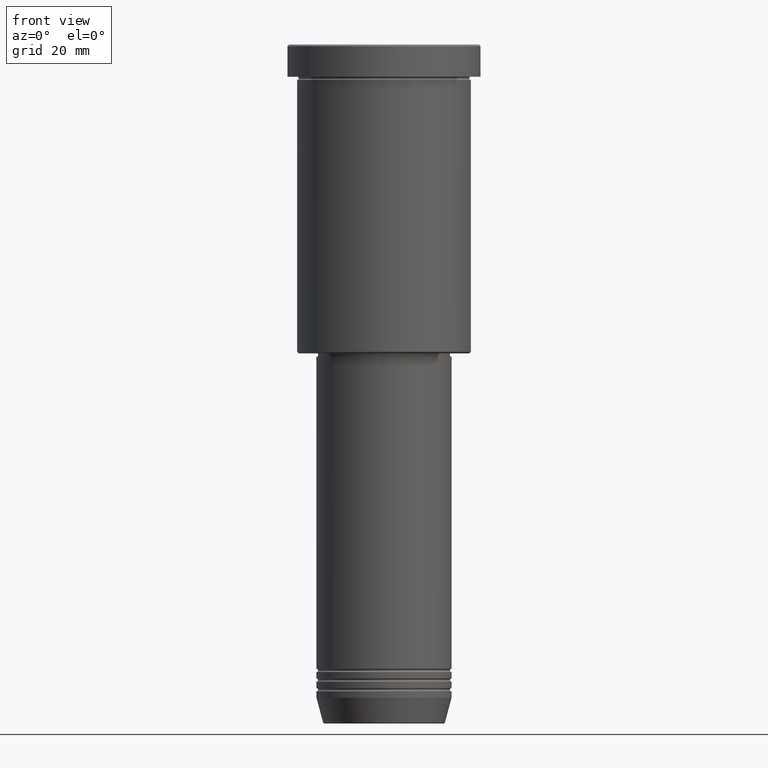
[diagram: clean part render]
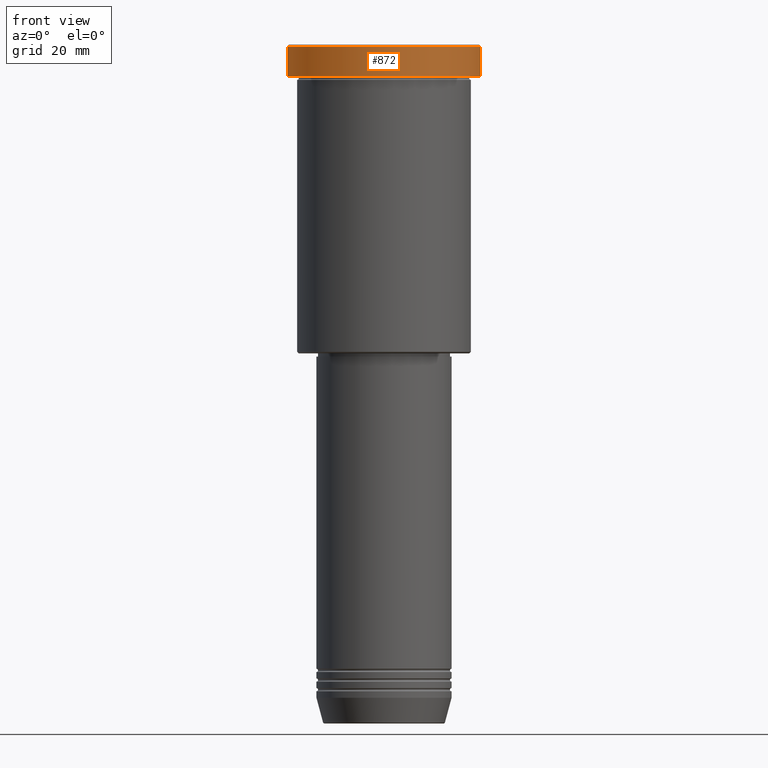
[diagram: same view with one face highlighted and labeled with its STEP entity id]
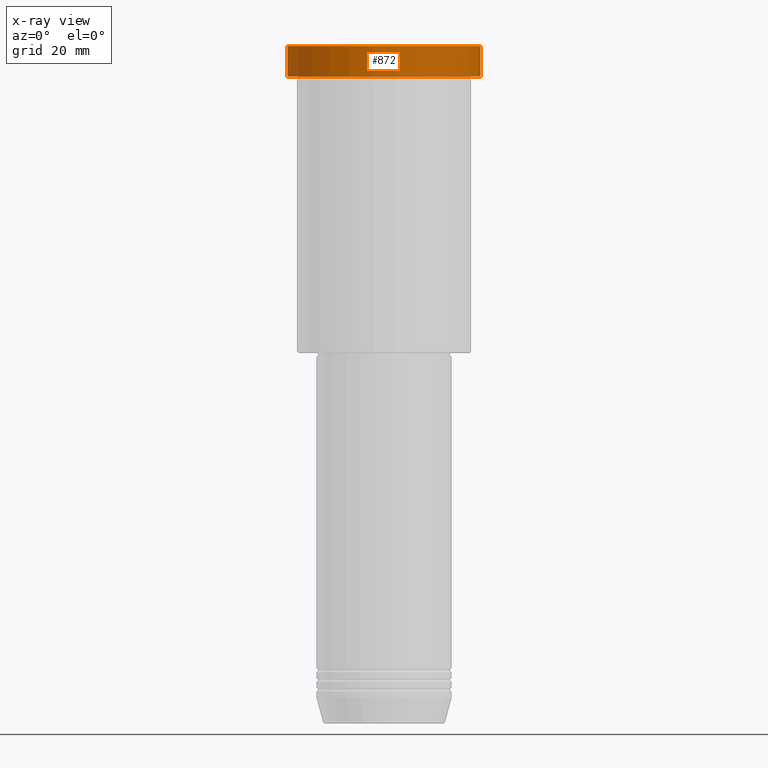
[diagram: x-ray of the same camera — body ghosted, the highlighted face saturated]
A machine part, front view. The second image highlights one B-rep face of the part: STEP entity #872.
The next image is the same camera in x-ray: the body ghosted, the highlighted face saturated — about 0% of this face is hidden behind the body in this view.
In plain terms, the highlighted cylindrical surface (partial cylindrical patch) has radius 30 mm, axis along (-0, -0, 1).
Its self-contained STEP definition (entity closure, byte-faithful):
#26 = VERTEX_POINT ( 'NONE', #225 ) ;
#44 = EDGE_CURVE ( 'NONE', #220, #1181, #228, .T. ) ;
#56 = CARTESIAN_POINT ( 'NONE',  ( 0.000000000000000000, 0.000000000000000000, 0.000000000000000000 ) ) ;
#104 = VECTOR ( 'NONE', #1065, 1000.000000000000000 ) ;
#128 = CARTESIAN_POINT ( 'NONE',  ( 30.00000000000000000, 0.000000000000000000, -9.999999999999992895 ) ) ;
#144 = EDGE_CURVE ( 'NONE', #26, #494, #806, .T. ) ;
#219 = DIRECTION ( 'NONE',  ( -0.000000000000000000, -0.000000000000000000, 1.000000000000000000 ) ) ;
#220 = VERTEX_POINT ( 'NONE', #128 ) ;
#225 = CARTESIAN_POINT ( 'NONE',  ( -30.00000000000000000, 3.673940397442059178E-15, -9.999999999999992895 ) ) ;
#228 = LINE ( 'NONE', #600, #856 ) ;
#254 = CARTESIAN_POINT ( 'NONE',  ( 0.000000000000000000, 0.000000000000000000, -0.4999999999999518718 ) ) ;
#265 = DIRECTION ( 'NONE',  ( -0.000000000000000000, -0.000000000000000000, 1.000000000000000000 ) ) ;
#277 = CARTESIAN_POINT ( 'NONE',  ( 0.000000000000000000, 0.000000000000000000, -9.999999999999992895 ) ) ;
#303 = CARTESIAN_POINT ( 'NONE',  ( 30.00000000000000000, 0.000000000000000000, -0.4999999999999518718 ) ) ;
#356 = DIRECTION ( 'NONE',  ( 0.000000000000000000, 0.000000000000000000, -1.000000000000000000 ) ) ;
#414 = AXIS2_PLACEMENT_3D ( 'NONE', #254, #356, #621 ) ;
#494 = VERTEX_POINT ( 'NONE', #1177 ) ;
#505 = DIRECTION ( 'NONE',  ( 1.000000000000000000, 0.000000000000000000, 0.000000000000000000 ) ) ;
#507 = DIRECTION ( 'NONE',  ( -0.000000000000000000, -0.000000000000000000, 1.000000000000000000 ) ) ;
#525 = CYLINDRICAL_SURFACE ( 'NONE', #822, 30.00000000000000000 ) ;
#528 = EDGE_CURVE ( 'NONE', #26, #220, #945, .T. ) ;
#530 = CIRCLE ( 'NONE', #414, 30.00000000000000000 ) ;
#594 = ORIENTED_EDGE ( 'NONE', *, *, #144, .F. ) ;
#600 = CARTESIAN_POINT ( 'NONE',  ( 30.00000000000000000, 0.000000000000000000, 0.000000000000000000 ) ) ;
#621 = DIRECTION ( 'NONE',  ( 1.000000000000000000, 0.000000000000000000, 0.000000000000000000 ) ) ;
#702 = ORIENTED_EDGE ( 'NONE', *, *, #933, .T. ) ;
#713 = ORIENTED_EDGE ( 'NONE', *, *, #528, .T. ) ;
#785 = AXIS2_PLACEMENT_3D ( 'NONE', #277, #265, #1094 ) ;
#806 = LINE ( 'NONE', #821, #104 ) ;
#821 = CARTESIAN_POINT ( 'NONE',  ( -30.00000000000000000, 3.673940397442059178E-15, 0.000000000000000000 ) ) ;
#822 = AXIS2_PLACEMENT_3D ( 'NONE', #56, #219, #505 ) ;
#856 = VECTOR ( 'NONE', #507, 1000.000000000000000 ) ;
#872 = ADVANCED_FACE ( 'NONE', ( #873 ), #525, .T. ) ;
#873 = FACE_OUTER_BOUND ( 'NONE', #1153, .T. ) ;
#933 = EDGE_CURVE ( 'NONE', #1181, #494, #530, .T. ) ;
#945 = CIRCLE ( 'NONE', #785, 30.00000000000000000 ) ;
#1065 = DIRECTION ( 'NONE',  ( -0.000000000000000000, -0.000000000000000000, 1.000000000000000000 ) ) ;
#1090 = ORIENTED_EDGE ( 'NONE', *, *, #44, .T. ) ;
#1094 = DIRECTION ( 'NONE',  ( 1.000000000000000000, 0.000000000000000000, 0.000000000000000000 ) ) ;
#1153 = EDGE_LOOP ( 'NONE', ( #594, #713, #1090, #702 ) ) ;
#1177 = CARTESIAN_POINT ( 'NONE',  ( -30.00000000000000000, 3.673940397442059178E-15, -0.4999999999999518718 ) ) ;
#1181 = VERTEX_POINT ( 'NONE', #303 ) ;